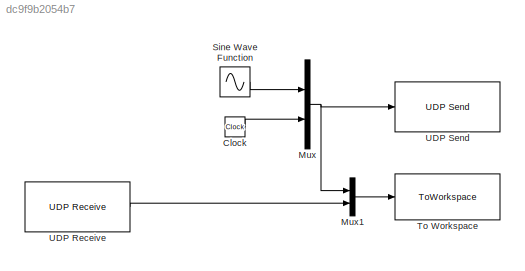
MODEL slx_dc9f9b2054b7
KIND model
CONFIG AbsTol = auto
CONFIG EnableMultiTasking = off
CONFIG FixedStep = 0.001
CONFIG MaxStep = auto
CONFIG MinStep = auto
CONFIG RelTol = 1e-3
CONFIG SampleTimeConstraint = Unconstrained
CONFIG Solver = FixedStepAuto
CONFIG SolverName = FixedStepAuto
CONFIG StartTime = 0.0
CONFIG StopTime = 5
BLOCK [Clock] Clock
BLOCK [Mux] Mux
  DisplayOption = bar
  Inputs = 2
  Ports = [2, 1]
BLOCK [Mux] Mux1
  DisplayOption = bar
  Inputs = 2
  Ports = [2, 1]
BLOCK [Sin] Sine Wave Function
  Frequency = 3.14
  Ports = [0, 1]
  SampleTime = 0.001
  Samples = 1000
  SineType = Sample based
BLOCK [ToWorkspace] To Workspace
  FixptAsFi = on
  MaxDataPoints = inf
  Ports = [1]
  SampleTime = -1
  Save2DSignal = 2-D array (concatenate along first dimension)
  VariableName = Delay_Cal
BLOCK [Reference] UDP Receive  REF=dspnetwork/UDP Receive
  Ports = [0, 1]
  SourceBlock = dspnetwork/UDP Receive
  SourceProductBaseCode = SL
  SourceProductName = Simulink
  SourceType = UDP Receive
BLOCK [Reference] UDP Send  REF=dspnetwork/UDP Send
  Ports = [1]
  SourceBlock = dspnetwork/UDP Send
  SourceProductBaseCode = SL
  SourceProductName = Simulink
  SourceType = UDP Send
LINE Clock:1 -> Mux:2
LINE Mux1:1 -> To Workspace:1
NET Mux:1 -> Mux1:1, UDP Send:1
LINE Sine Wave Function:1 -> Mux:1
LINE UDP Receive:1 -> Mux1:2
note: NET lines group one-source signal fan-out (src -> all destinations, sorted); 1:1 wires keep LINE
